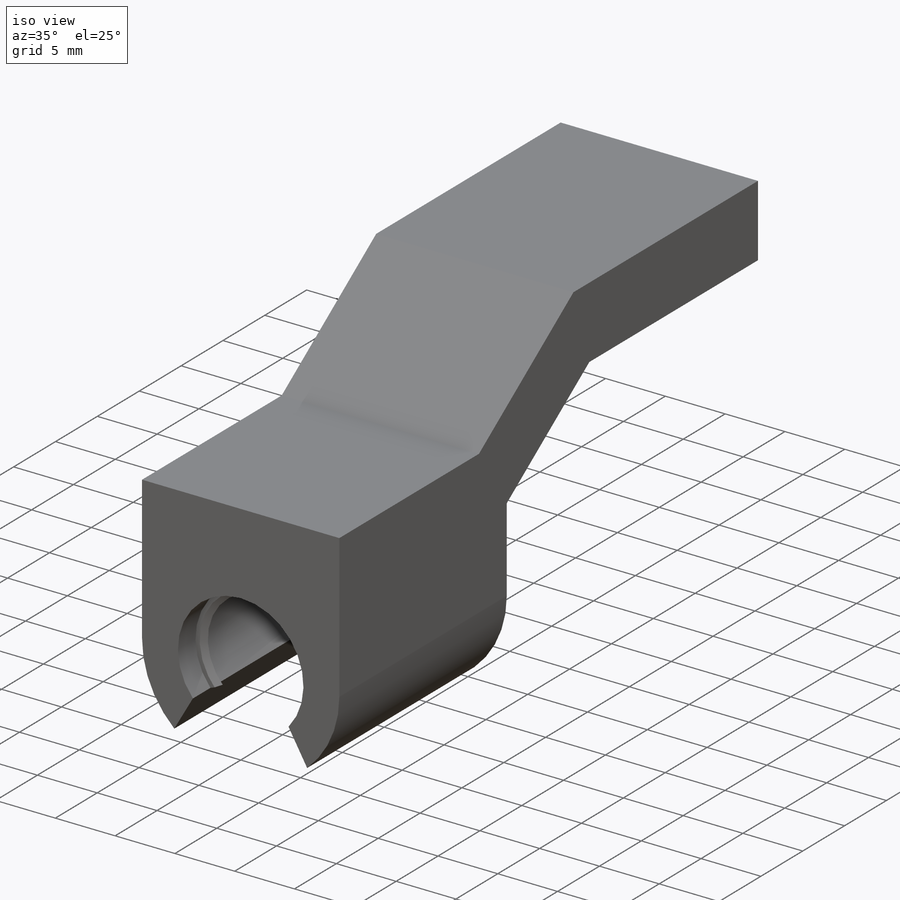
[diagram: iso view]
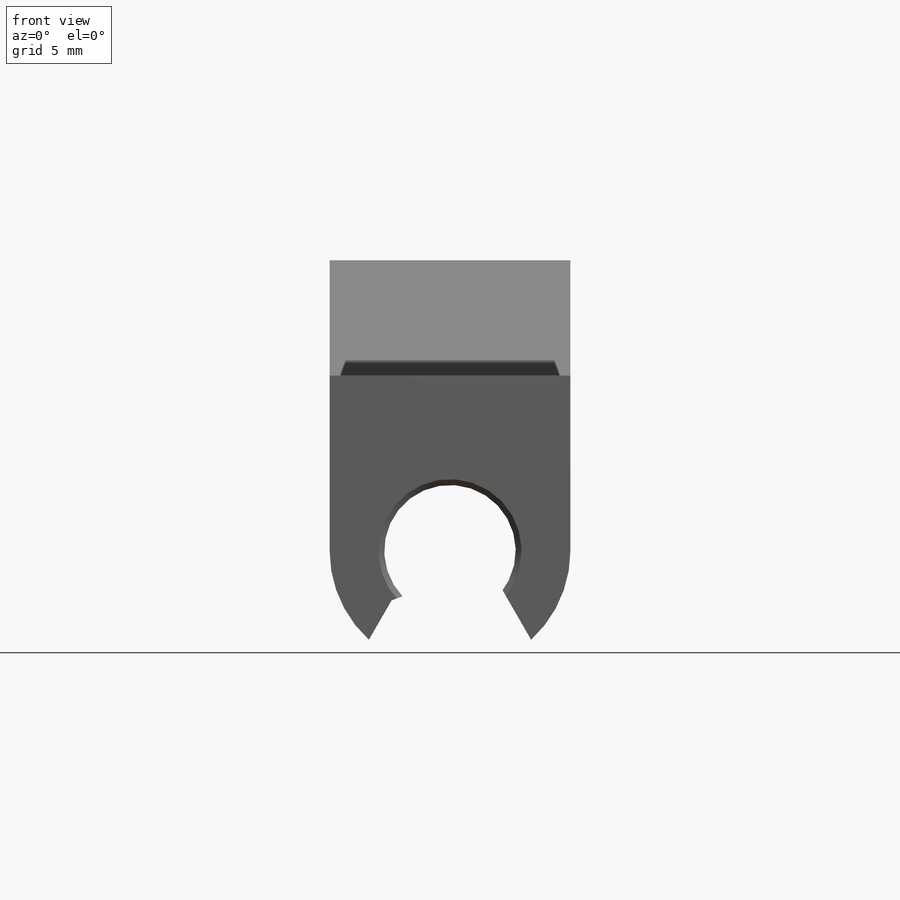
[diagram: front view]
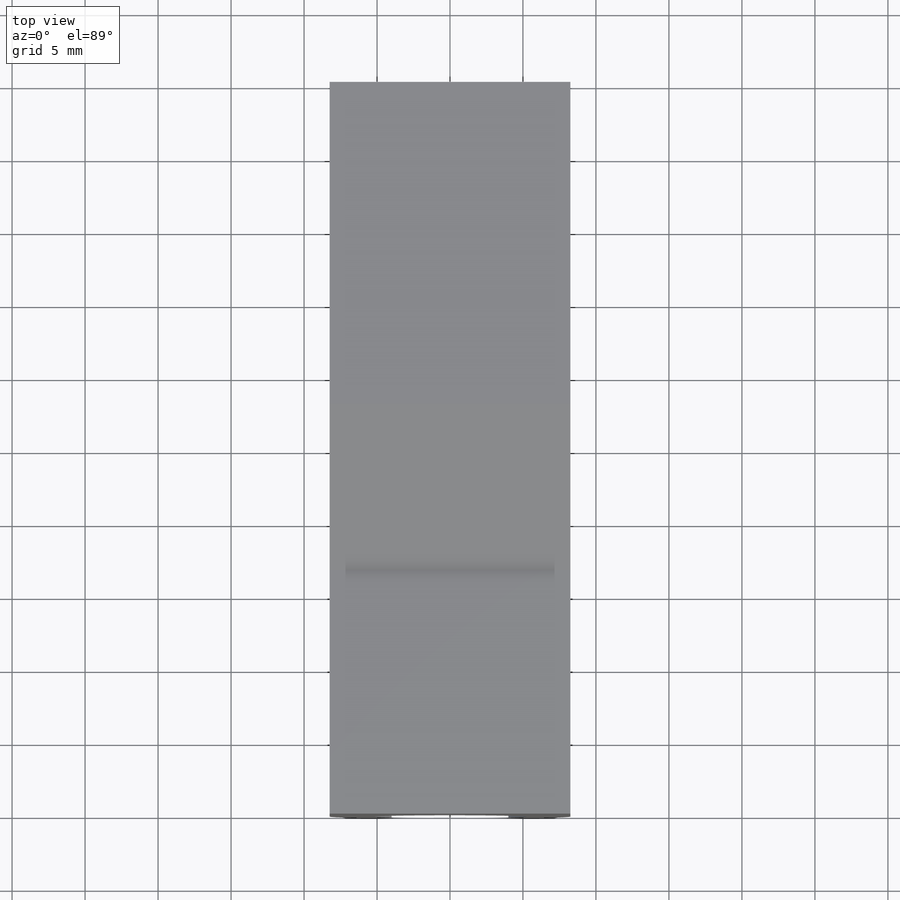
[diagram: top view]
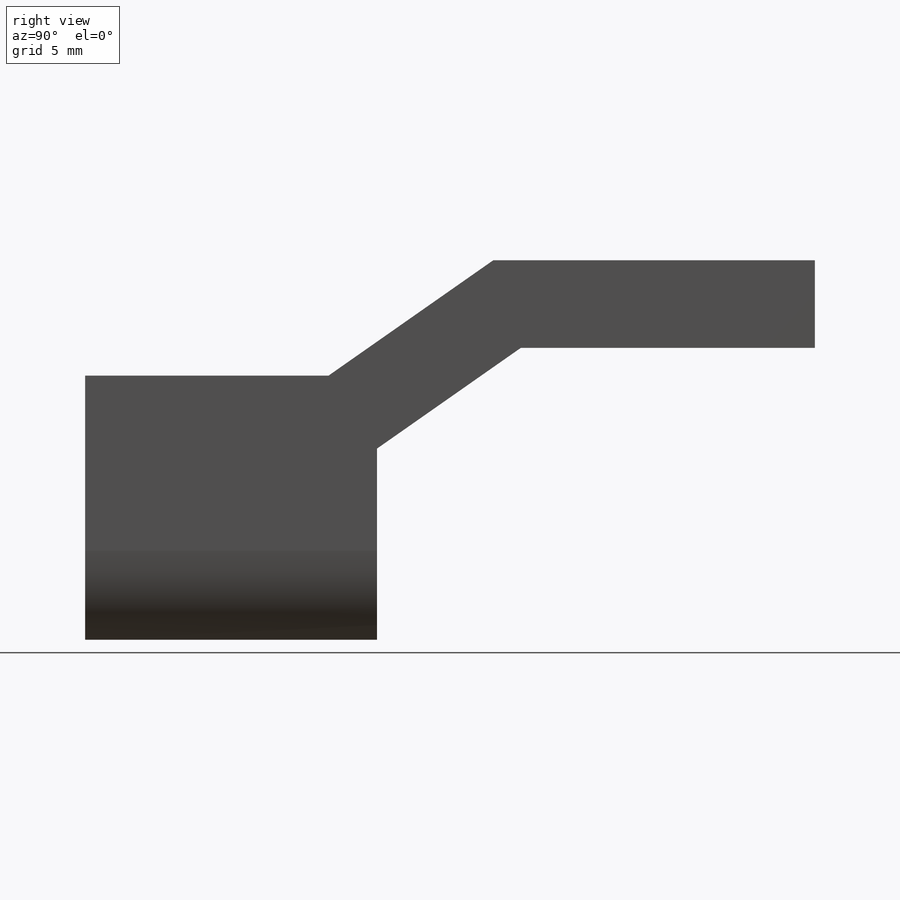
[diagram: right view]
SOLIDWORKS PART (.sldprt)
format: sldprt  version: not decoded by parser v0  size: 267,264 bytes
history: native  units: mm
features: sketch x6, extrude x3, fillet x3, chamfer x2, cut_extrude x2, material x1, sweep x1 (+11 scaffold rows collapsed)
feature tree (29):
  scaffold x11  (default folders/planes/origin — collapsed)
  material  "Material <not specified>"
  sketch  "Sketch1"  dims[c1.D1=10.5mm c1.D2=3.0mm c1.D3=~8.516818mm c2.D3=60.0deg c2.D4=8.0mm c2.D5=12.0mm]
  extrude  "Boss-Extrude1"  Depth=20mm
  sketch  "Sketch4"  dims[D1=15.0mm D2=0.8mm D3=0.8mm D4=2.1mm D5=~3.006848mm]
  sweep  "Sweep1"
  chamfer  "Chamfer3"  Distance=0.4mm Angle=45deg
  sketch  "Sketch9"  dims[c1.D1=6.0mm c1.D2=6.0mm c1.D3=5.0mm c1.D4=30.0mm c1.D5=20.0mm c1.D6=~15.448093mm c2.D6=145.0deg]
  extrude  "Boss-Extrude4"  Depth=16.5mm
  sketch  "Sketch2"  dims[D1=6.2mm D2=8.0mm D3=6.0mm D4=8.0mm]
  cut_extrude  "Cut-Extrude1"  [1 undecoded]
  sketch  "Sketch3"  dims[D1=3.2mm]
  extrude  "Boss-Extrude2"  Depth=3mm
  chamfer  "Chamfer2"  Distance=1.5mm Angle=45deg
  fillet  "Fillet1"  Radius=1mm
  sketch  "Sketch5"  dims[D1=2.5mm D2=4.0mm D3=8.0mm D4=2.0mm]
  cut_extrude  "Cut-Extrude2"  [1 undecoded]
  fillet  "Fillet2"  Radius=5mm
  fillet  "Fillet3"  Radius=1mm
decode coverage: 14 of 17 modeling features carry decoded parameters
note: ~ marks probable driven/reference dimensions
note: 2 parameter values undecoded
note: suppression state not decoded; provenance and decode notes live in map.json
